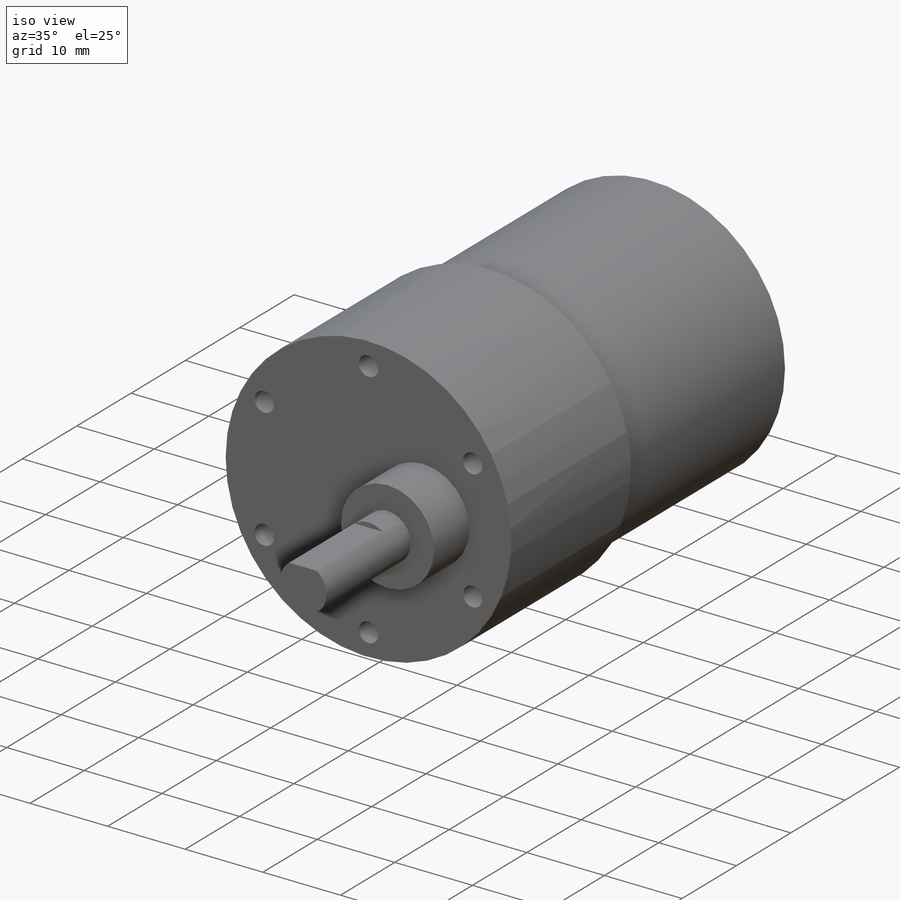
[diagram: iso view]
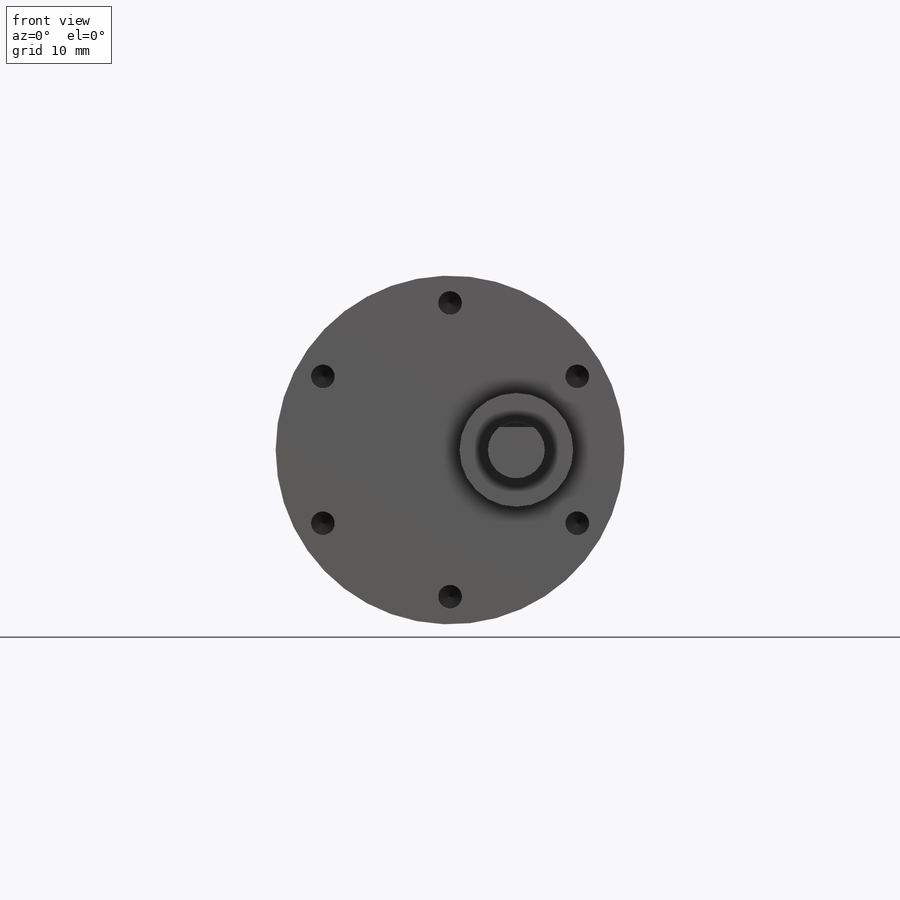
[diagram: front view]
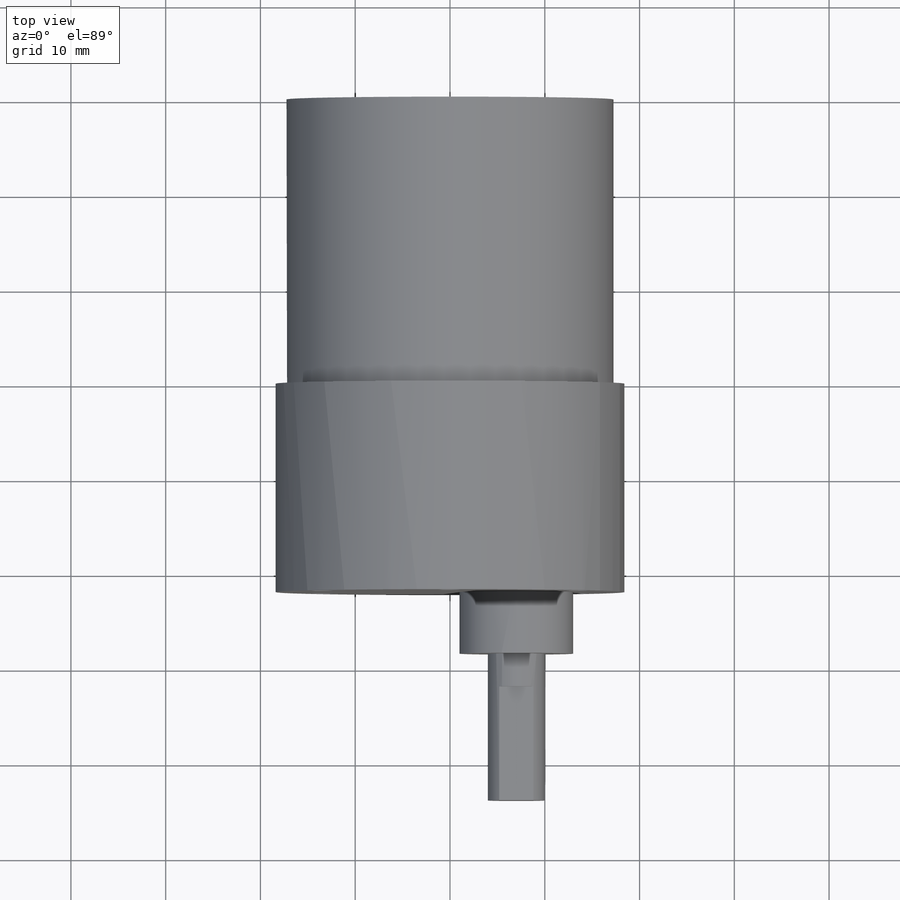
[diagram: top view]
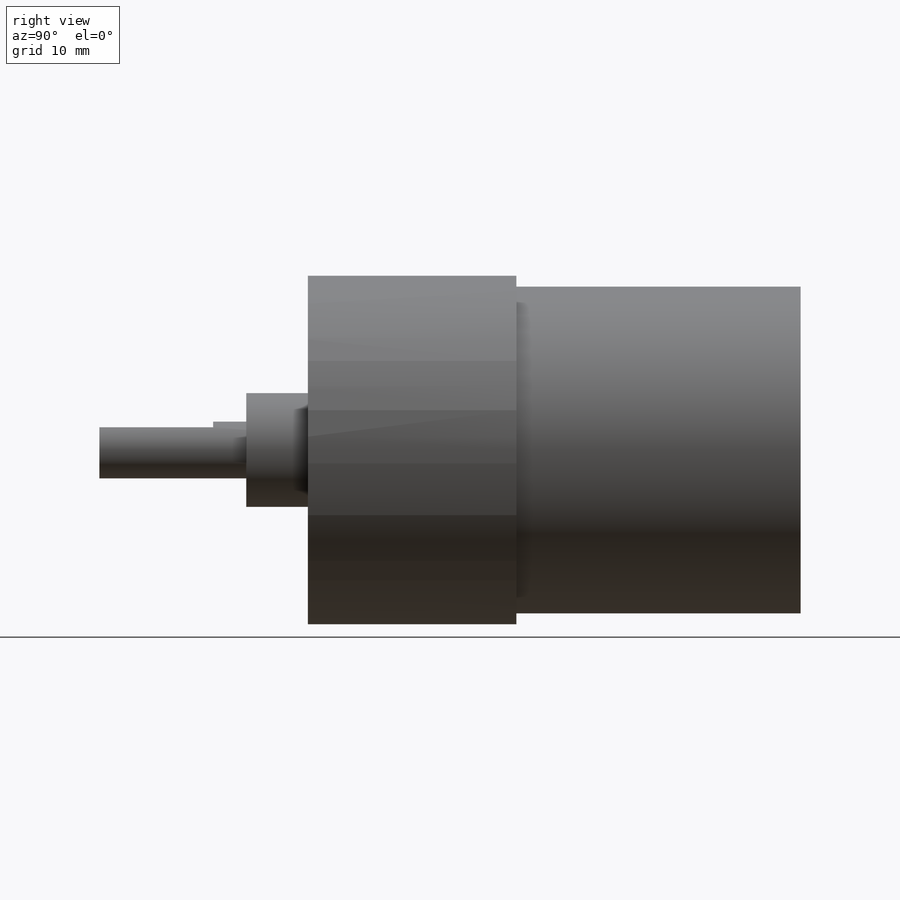
[diagram: right view]
SOLIDWORKS PART (.sldprt)
format: sldprt  version: not decoded by parser v0  size: 281,088 bytes
history: native  units: mm
features: sketch x9, thread x6, extrude x4, material x1, hole x1, cut_extrude x1 (+12 scaffold rows collapsed)
feature tree (34):
  scaffold x12  (default folders/planes/origin — collapsed)
  material  "Material <not specified>"
  sketch  "Sketch1"  dims[D1=36.8mm]
  extrude  "Boss-Extrude1"  Depth=22mm
  sketch  "Sketch2"  dims[D1=15.5mm D2=31.0mm]
  hole  "M3x0.5 Tapped Hole1"  Diameter=2.5mm Depth=7.62mm
  sketch  "Sketch4"
  sketch  "Sketch3"  dims[hole-wizard template sketch: 47 standard entries collapsed; hole parameters kept: c15.Tap Drill Depth=7.62mm c15.D3=~14.816244mm c15.Drill Angle=118.0deg]
  thread  "Hole Thread1"  Diameter=6.096mm  [1 undecoded]
  thread  "Hole Thread2"  Diameter=6.096mm  [1 undecoded]
  thread  "Hole Thread3"  Diameter=6.096mm  [1 undecoded]
  thread  "Hole Thread4"  Diameter=6.096mm  [1 undecoded]
  thread  "Hole Thread5"  Diameter=6.096mm  [1 undecoded]
  thread  "Hole Thread6"  Diameter=6.096mm  [1 undecoded]
  sketch  "Sketch6"  dims[D1=34.5mm]
  extrude  "Boss-Extrude2"  Depth=30mm
  sketch  "Sketch7"  dims[D1=6.0mm D2=7.0mm]
  extrude  "Boss-Extrude3"  Depth=22mm
  sketch  "Sketch8"  dims[D1=5.4mm]
  cut_extrude  "Cut-Extrude1"  Depth=12mm
  sketch  "Sketch9"  dims[D1=12.0mm]
  extrude  "Boss-Extrude4"  Depth=6.5mm
  sketch  "Sketch10"
decode coverage: 19 of 21 modeling features carry decoded parameters
note: ~ marks probable driven/reference dimensions
note: 6 parameter values undecoded
note: suppression state not decoded; provenance and decode notes live in map.json
